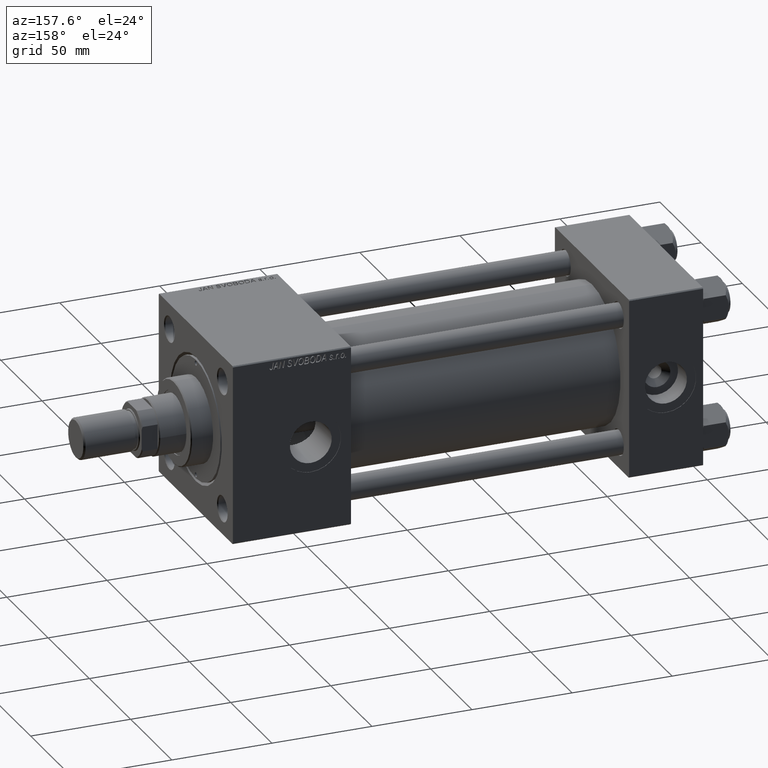
[diagram: clean part render]
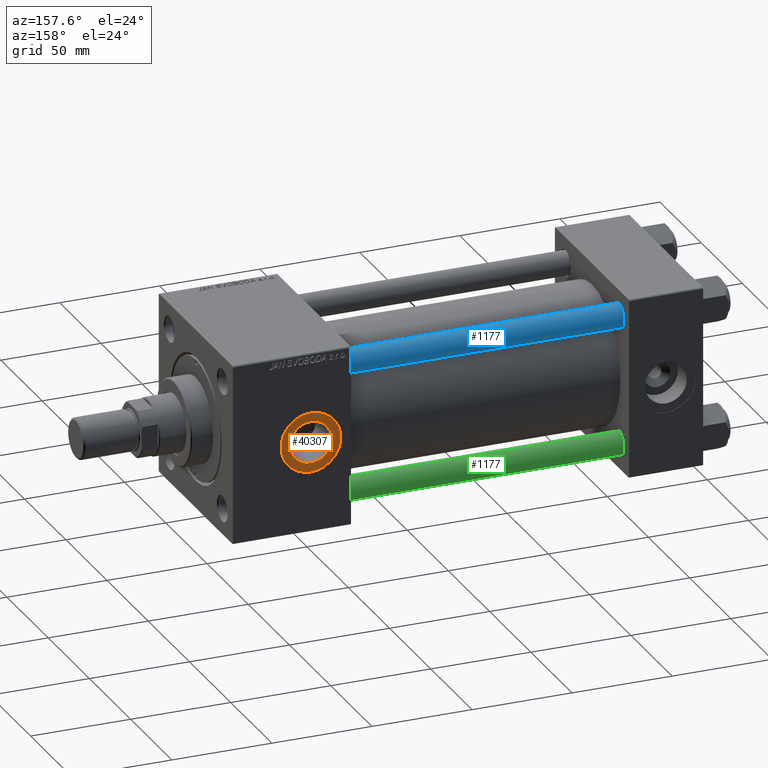
[diagram: same view with three faces highlighted in distinct colors, each labeled with its STEP entity id]
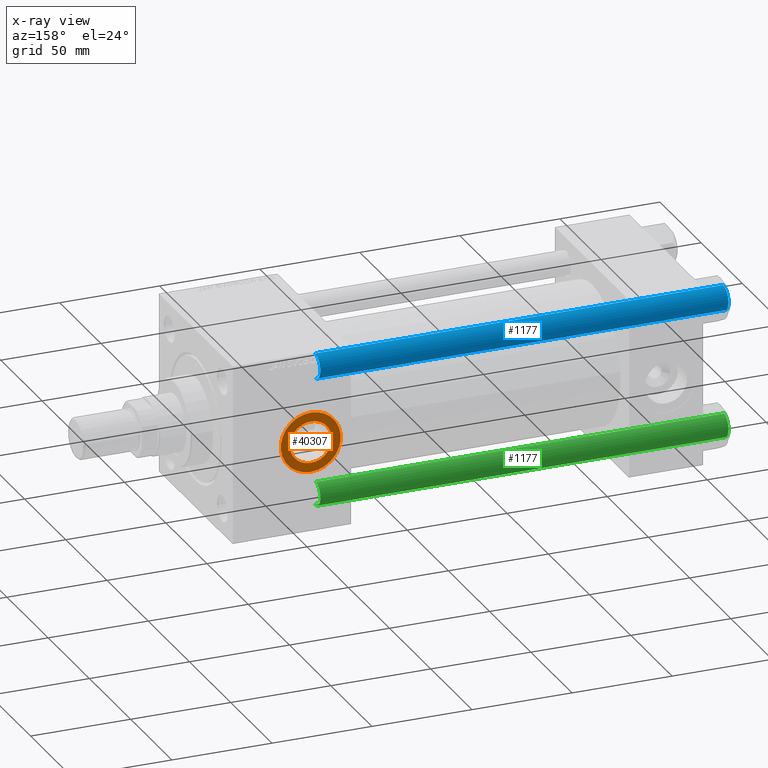
[diagram: x-ray of the same camera — body ghosted, the three highlighted faces saturated]
A machine part, auxiliary view with three faces highlighted in distinct colors.
The next image is the same camera in x-ray (body ghosted, the three faces saturated) — at least one of them is partly hidden behind the body in this view.
Their STEP definitions:

[orange] entity #40307 — the highlighted planar face has unit normal (0, 1, 0).
#1467 = FACE_OUTER_BOUND ( 'NONE', #50345, .T. ) ;
#3855 = ORIENTED_EDGE ( 'NONE', *, *, #41383, .F. ) ;
#4347 = VERTEX_POINT ( 'NONE', #49222 ) ;
#4785 = DIRECTION ( 'NONE',  ( 0.000000000000000000, 0.000000000000000000, 1.000000000000000000 ) ) ;
#4914 = CARTESIAN_POINT ( 'NONE',  ( 196.0000000000000000, 44.80000000000001137, 0.000000000000000000 ) ) ;
#5219 = DIRECTION ( 'NONE',  ( 0.000000000000000000, 1.000000000000000000, 0.000000000000000000 ) ) ;
#5673 = DIRECTION ( 'NONE',  ( 0.000000000000000000, 1.000000000000000000, 0.000000000000000000 ) ) ;
#7241 = EDGE_LOOP ( 'NONE', ( #3855, #18871 ) ) ;
#9213 = CIRCLE ( 'NONE', #38223, 10.47999999999998622 ) ;
#9699 = DIRECTION ( 'NONE',  ( 0.000000000000000000, 0.000000000000000000, 1.000000000000000000 ) ) ;
#9958 = AXIS2_PLACEMENT_3D ( 'NONE', #24068, #52955, #4785 ) ;
#10330 = AXIS2_PLACEMENT_3D ( 'NONE', #17981, #5673, #9699 ) ;
#12956 = DIRECTION ( 'NONE',  ( 0.000000000000000000, 0.000000000000000000, 1.000000000000000000 ) ) ;
#13752 = ORIENTED_EDGE ( 'NONE', *, *, #38550, .T. ) ;
#15098 = DIRECTION ( 'NONE',  ( 0.000000000000000000, 0.000000000000000000, 1.000000000000000000 ) ) ;
#17795 = DIRECTION ( 'NONE',  ( 0.000000000000000000, -0.000000000000000000, 1.000000000000000000 ) ) ;
#17981 = CARTESIAN_POINT ( 'NONE',  ( 196.0000000000000000, 44.80000000000000426, 0.000000000000000000 ) ) ;
#18871 = ORIENTED_EDGE ( 'NONE', *, *, #29236, .F. ) ;
#19340 = AXIS2_PLACEMENT_3D ( 'NONE', #4914, #45576, #12956 ) ;
#19382 = AXIS2_PLACEMENT_3D ( 'NONE', #26342, #5219, #17795 ) ;
#22753 = CIRCLE ( 'NONE', #19340, 15.00000000000002487 ) ;
#23125 = DIRECTION ( 'NONE',  ( 0.000000000000000000, 1.000000000000000000, 0.000000000000000000 ) ) ;
#24068 = CARTESIAN_POINT ( 'NONE',  ( 196.0000000000000000, 44.80000000000001137, 0.000000000000000000 ) ) ;
#25214 = VERTEX_POINT ( 'NONE', #37955 ) ;
#26340 = CARTESIAN_POINT ( 'NONE',  ( 196.0000000000000000, 44.80000000000000426, -10.47999999999998622 ) ) ;
#26342 = CARTESIAN_POINT ( 'NONE',  ( 196.0000000000000000, 44.80000000000001137, 0.000000000000000000 ) ) ;
#27018 = CIRCLE ( 'NONE', #9958, 15.00000000000002487 ) ;
#29236 = EDGE_CURVE ( 'NONE', #51318, #25214, #31658, .T. ) ;
#31658 = CIRCLE ( 'NONE', #10330, 10.47999999999998622 ) ;
#33839 = FACE_BOUND ( 'NONE', #7241, .T. ) ;
#37955 = CARTESIAN_POINT ( 'NONE',  ( 196.0000000000000000, 44.80000000000000426, 10.47999999999998622 ) ) ;
#38223 = AXIS2_PLACEMENT_3D ( 'NONE', #43435, #23125, #15098 ) ;
#38515 = CARTESIAN_POINT ( 'NONE',  ( 196.0000000000000000, 44.80000000000001137, -15.00000000000002487 ) ) ;
#38550 = EDGE_CURVE ( 'NONE', #4347, #42169, #22753, .T. ) ;
#39211 = EDGE_CURVE ( 'NONE', #42169, #4347, #27018, .T. ) ;
#40307 = ADVANCED_FACE ( 'NONE', ( #33839, #1467 ), #45615, .T. ) ;
#41383 = EDGE_CURVE ( 'NONE', #25214, #51318, #9213, .T. ) ;
#42169 = VERTEX_POINT ( 'NONE', #38515 ) ;
#43435 = CARTESIAN_POINT ( 'NONE',  ( 196.0000000000000000, 44.80000000000000426, 0.000000000000000000 ) ) ;
#44118 = ORIENTED_EDGE ( 'NONE', *, *, #39211, .T. ) ;
#45576 = DIRECTION ( 'NONE',  ( 0.000000000000000000, 1.000000000000000000, 0.000000000000000000 ) ) ;
#45615 = PLANE ( 'NONE',  #19382 ) ;
#49222 = CARTESIAN_POINT ( 'NONE',  ( 196.0000000000000000, 44.80000000000001137, 15.00000000000002487 ) ) ;
#50345 = EDGE_LOOP ( 'NONE', ( #13752, #44118 ) ) ;
#51318 = VERTEX_POINT ( 'NONE', #26340 ) ;
#52955 = DIRECTION ( 'NONE',  ( 0.000000000000000000, 1.000000000000000000, 0.000000000000000000 ) ) ;

[blue] entity #1177 — the highlighted cylindrical surface (edge-blend (fillet) strip) has radius 6 mm, axis along (-1, 0, 0).
#103 = CARTESIAN_POINT ( 'NONE',  ( 6.000000000000000888, 7.347880794884119736E-16, 0.5000000000001114664 ) ) ;
#1177 = ADVANCED_FACE ( 'NONE', ( #30854 ), #11063, .T. ) ;
#1343 = EDGE_CURVE ( 'NONE', #37098, #23096, #40453, .T. ) ;
#3559 = CARTESIAN_POINT ( 'NONE',  ( -6.000000000000000888, 0.000000000000000000, 205.0000000000000000 ) ) ;
#3825 = DIRECTION ( 'NONE',  ( -0.000000000000000000, -0.000000000000000000, -1.000000000000000000 ) ) ;
#4179 = DIRECTION ( 'NONE',  ( 0.000000000000000000, 0.000000000000000000, -1.000000000000000000 ) ) ;
#4870 = EDGE_LOOP ( 'NONE', ( #50758, #46696, #47161, #5395 ) ) ;
#5395 = ORIENTED_EDGE ( 'NONE', *, *, #1343, .F. ) ;
#7918 = CARTESIAN_POINT ( 'NONE',  ( 0.000000000000000000, 0.000000000000000000, 204.5000000000000568 ) ) ;
#9420 = CARTESIAN_POINT ( 'NONE',  ( 6.000000000000000888, 7.347880794884119736E-16, 205.0000000000000000 ) ) ;
#11063 = CYLINDRICAL_SURFACE ( 'NONE', #15689, 6.000000000000000888 ) ;
#12812 = CARTESIAN_POINT ( 'NONE',  ( 6.000000000000000888, 7.347880794884119736E-16, 204.5000000000000568 ) ) ;
#14527 = CIRCLE ( 'NONE', #34202, 6.000000000000000888 ) ;
#15689 = AXIS2_PLACEMENT_3D ( 'NONE', #51990, #39409, #23109 ) ;
#23096 = VERTEX_POINT ( 'NONE', #24619 ) ;
#23109 = DIRECTION ( 'NONE',  ( -1.000000000000000000, 0.000000000000000000, 0.000000000000000000 ) ) ;
#23553 = CIRCLE ( 'NONE', #33831, 6.000000000000000888 ) ;
#24619 = CARTESIAN_POINT ( 'NONE',  ( -6.000000000000000888, 0.000000000000000000, 0.5000000000001114664 ) ) ;
#27242 = EDGE_CURVE ( 'NONE', #37098, #27699, #14527, .T. ) ;
#27699 = VERTEX_POINT ( 'NONE', #12812 ) ;
#29006 = CARTESIAN_POINT ( 'NONE',  ( -6.000000000000000888, 0.000000000000000000, 204.5000000000000568 ) ) ;
#30854 = FACE_OUTER_BOUND ( 'NONE', #4870, .T. ) ;
#33742 = DIRECTION ( 'NONE',  ( -0.000000000000000000, -0.000000000000000000, -1.000000000000000000 ) ) ;
#33831 = AXIS2_PLACEMENT_3D ( 'NONE', #45914, #46435, #41893 ) ;
#33921 = EDGE_CURVE ( 'NONE', #47150, #23096, #23553, .T. ) ;
#34202 = AXIS2_PLACEMENT_3D ( 'NONE', #7918, #4179, #47782 ) ;
#34407 = EDGE_CURVE ( 'NONE', #27699, #47150, #41495, .T. ) ;
#37098 = VERTEX_POINT ( 'NONE', #29006 ) ;
#39409 = DIRECTION ( 'NONE',  ( -0.000000000000000000, -0.000000000000000000, -1.000000000000000000 ) ) ;
#40453 = LINE ( 'NONE', #3559, #47294 ) ;
#41495 = LINE ( 'NONE', #9420, #50937 ) ;
#41893 = DIRECTION ( 'NONE',  ( 1.000000000000000000, 0.000000000000000000, 0.000000000000000000 ) ) ;
#45914 = CARTESIAN_POINT ( 'NONE',  ( 0.000000000000000000, 0.000000000000000000, 0.5000000000001114664 ) ) ;
#46435 = DIRECTION ( 'NONE',  ( -0.000000000000000000, -0.000000000000000000, 1.000000000000000000 ) ) ;
#46696 = ORIENTED_EDGE ( 'NONE', *, *, #34407, .T. ) ;
#47150 = VERTEX_POINT ( 'NONE', #103 ) ;
#47161 = ORIENTED_EDGE ( 'NONE', *, *, #33921, .T. ) ;
#47294 = VECTOR ( 'NONE', #3825, 1000.000000000000000 ) ;
#47782 = DIRECTION ( 'NONE',  ( 1.000000000000000000, 0.000000000000000000, 0.000000000000000000 ) ) ;
#50758 = ORIENTED_EDGE ( 'NONE', *, *, #27242, .T. ) ;
#50937 = VECTOR ( 'NONE', #33742, 1000.000000000000000 ) ;
#51990 = CARTESIAN_POINT ( 'NONE',  ( 0.000000000000000000, 0.000000000000000000, 205.0000000000000000 ) ) ;

[green] entity #1177 — the highlighted cylindrical surface (edge-blend (fillet) strip) has radius 6 mm, axis along (1, -0, 0).
#103 = CARTESIAN_POINT ( 'NONE',  ( 6.000000000000000888, 7.347880794884119736E-16, 0.5000000000001114664 ) ) ;
#1177 = ADVANCED_FACE ( 'NONE', ( #30854 ), #11063, .T. ) ;
#1343 = EDGE_CURVE ( 'NONE', #37098, #23096, #40453, .T. ) ;
#3559 = CARTESIAN_POINT ( 'NONE',  ( -6.000000000000000888, 0.000000000000000000, 205.0000000000000000 ) ) ;
#3825 = DIRECTION ( 'NONE',  ( -0.000000000000000000, -0.000000000000000000, -1.000000000000000000 ) ) ;
#4179 = DIRECTION ( 'NONE',  ( 0.000000000000000000, 0.000000000000000000, -1.000000000000000000 ) ) ;
#4870 = EDGE_LOOP ( 'NONE', ( #50758, #46696, #47161, #5395 ) ) ;
#5395 = ORIENTED_EDGE ( 'NONE', *, *, #1343, .F. ) ;
#7918 = CARTESIAN_POINT ( 'NONE',  ( 0.000000000000000000, 0.000000000000000000, 204.5000000000000568 ) ) ;
#9420 = CARTESIAN_POINT ( 'NONE',  ( 6.000000000000000888, 7.347880794884119736E-16, 205.0000000000000000 ) ) ;
#11063 = CYLINDRICAL_SURFACE ( 'NONE', #15689, 6.000000000000000888 ) ;
#12812 = CARTESIAN_POINT ( 'NONE',  ( 6.000000000000000888, 7.347880794884119736E-16, 204.5000000000000568 ) ) ;
#14527 = CIRCLE ( 'NONE', #34202, 6.000000000000000888 ) ;
#15689 = AXIS2_PLACEMENT_3D ( 'NONE', #51990, #39409, #23109 ) ;
#23096 = VERTEX_POINT ( 'NONE', #24619 ) ;
#23109 = DIRECTION ( 'NONE',  ( -1.000000000000000000, 0.000000000000000000, 0.000000000000000000 ) ) ;
#23553 = CIRCLE ( 'NONE', #33831, 6.000000000000000888 ) ;
#24619 = CARTESIAN_POINT ( 'NONE',  ( -6.000000000000000888, 0.000000000000000000, 0.5000000000001114664 ) ) ;
#27242 = EDGE_CURVE ( 'NONE', #37098, #27699, #14527, .T. ) ;
#27699 = VERTEX_POINT ( 'NONE', #12812 ) ;
#29006 = CARTESIAN_POINT ( 'NONE',  ( -6.000000000000000888, 0.000000000000000000, 204.5000000000000568 ) ) ;
#30854 = FACE_OUTER_BOUND ( 'NONE', #4870, .T. ) ;
#33742 = DIRECTION ( 'NONE',  ( -0.000000000000000000, -0.000000000000000000, -1.000000000000000000 ) ) ;
#33831 = AXIS2_PLACEMENT_3D ( 'NONE', #45914, #46435, #41893 ) ;
#33921 = EDGE_CURVE ( 'NONE', #47150, #23096, #23553, .T. ) ;
#34202 = AXIS2_PLACEMENT_3D ( 'NONE', #7918, #4179, #47782 ) ;
#34407 = EDGE_CURVE ( 'NONE', #27699, #47150, #41495, .T. ) ;
#37098 = VERTEX_POINT ( 'NONE', #29006 ) ;
#39409 = DIRECTION ( 'NONE',  ( -0.000000000000000000, -0.000000000000000000, -1.000000000000000000 ) ) ;
#40453 = LINE ( 'NONE', #3559, #47294 ) ;
#41495 = LINE ( 'NONE', #9420, #50937 ) ;
#41893 = DIRECTION ( 'NONE',  ( 1.000000000000000000, 0.000000000000000000, 0.000000000000000000 ) ) ;
#45914 = CARTESIAN_POINT ( 'NONE',  ( 0.000000000000000000, 0.000000000000000000, 0.5000000000001114664 ) ) ;
#46435 = DIRECTION ( 'NONE',  ( -0.000000000000000000, -0.000000000000000000, 1.000000000000000000 ) ) ;
#46696 = ORIENTED_EDGE ( 'NONE', *, *, #34407, .T. ) ;
#47150 = VERTEX_POINT ( 'NONE', #103 ) ;
#47161 = ORIENTED_EDGE ( 'NONE', *, *, #33921, .T. ) ;
#47294 = VECTOR ( 'NONE', #3825, 1000.000000000000000 ) ;
#47782 = DIRECTION ( 'NONE',  ( 1.000000000000000000, 0.000000000000000000, 0.000000000000000000 ) ) ;
#50758 = ORIENTED_EDGE ( 'NONE', *, *, #27242, .T. ) ;
#50937 = VECTOR ( 'NONE', #33742, 1000.000000000000000 ) ;
#51990 = CARTESIAN_POINT ( 'NONE',  ( 0.000000000000000000, 0.000000000000000000, 205.0000000000000000 ) ) ;